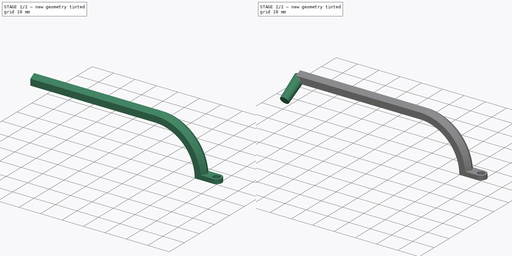
[diagram: build sequence overview — one tinted view per stage of 2, left to right]
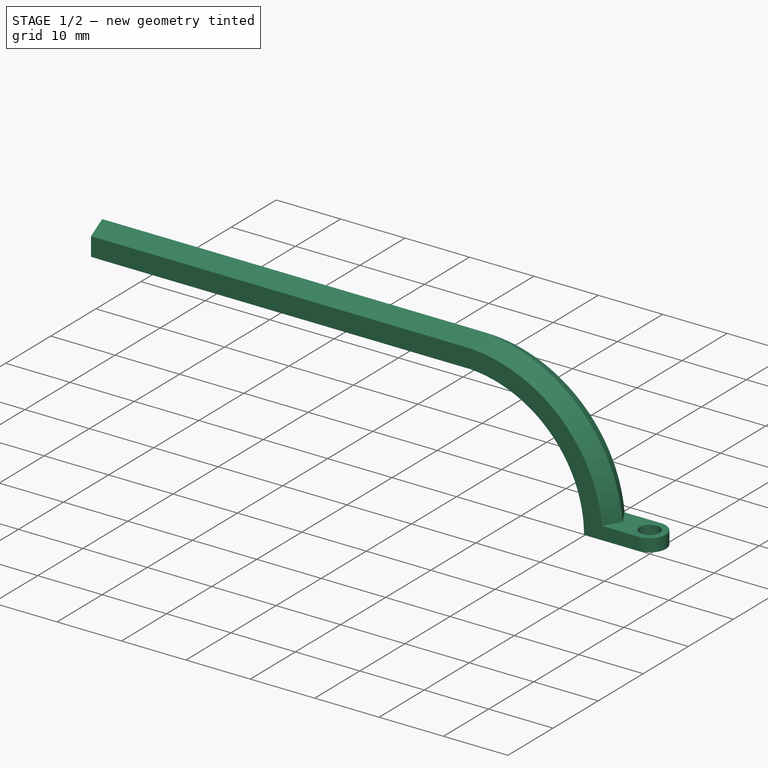
[diagram: stage 1 of 2 — iso view after this stage's code; geometry added in this stage tinted green]
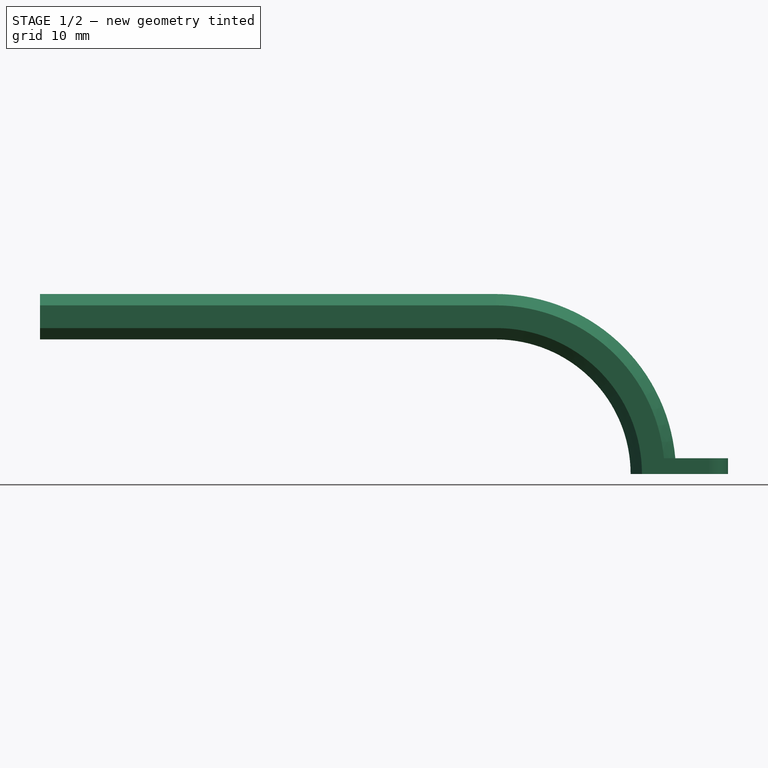
[diagram: stage 1 of 2 — front view after this stage's code; geometry added in this stage tinted green]
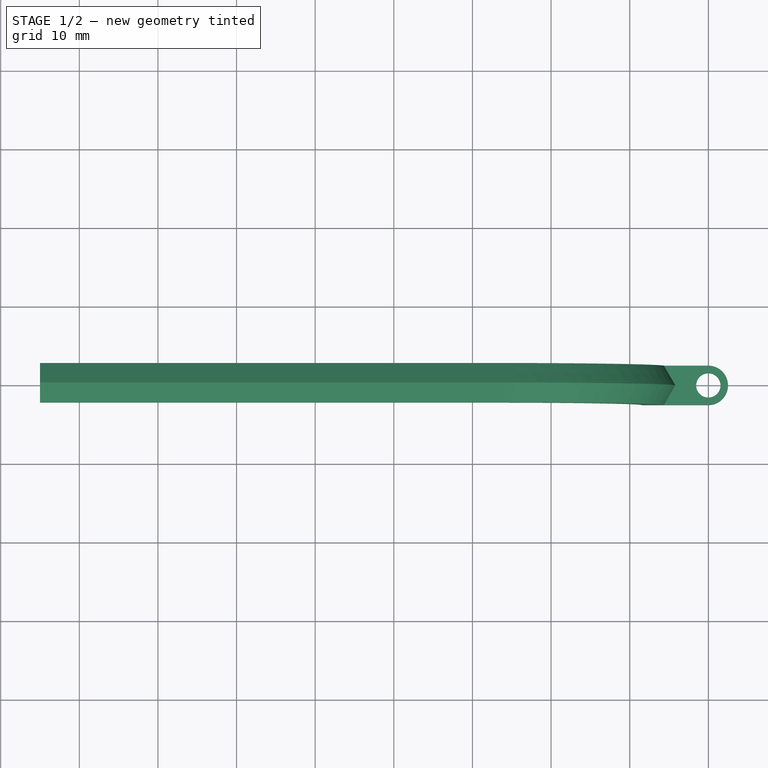
[diagram: stage 1 of 2 — top view after this stage's code; geometry added in this stage tinted green]
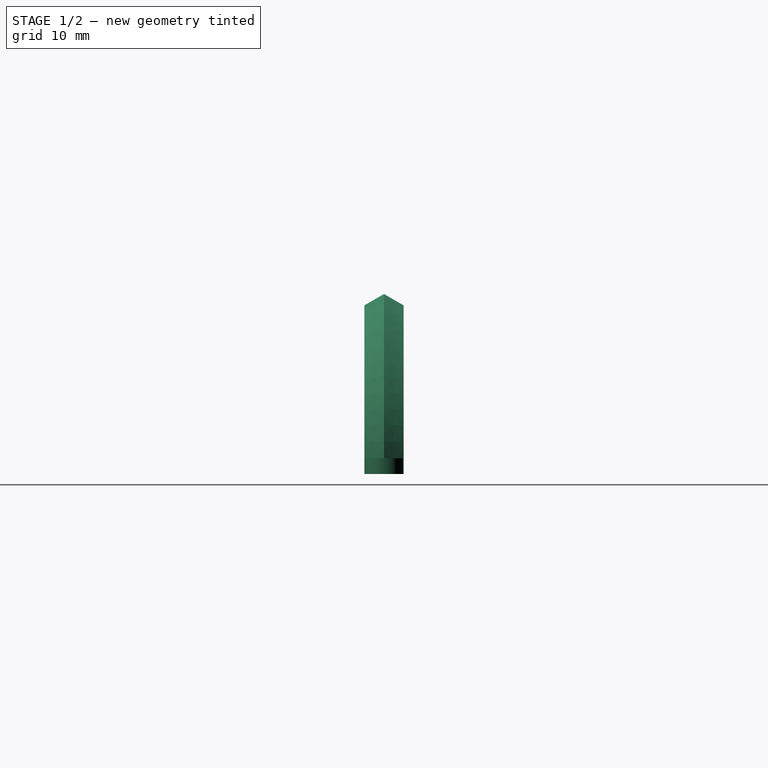
[diagram: stage 1 of 2 — right view after this stage's code; geometry added in this stage tinted green]
FCSTD DOCUMENT  (FreeCAD 0.19R24344 (Git))
Label: MicroManipulator_Arm_60
Comment: Arm for the MicroManipulator. The friction mount point for the Luer lock has the same angle as the holder of the peltier element. This angle is for installing the manipualtor on the left side of the p... (+15 chars)
License: Creative Commons Attribution-NonCommercial-ShareAlike
LicenseURL: http://creativecommons.org/licenses/by-nc-sa/4.0/
objects: Sketcher::SketchObject×4, PartDesign::CoordinateSystem×2, PartDesign::Pad×1, PartDesign::AdditivePipe×1, PartDesign::Line×1, PartDesign::Revolution×1, PartDesign::Body×1, App::Part×1
note: 14 computed .brp shape members not serialized (recipe doc carries the construction recipe); baked Part::Feature solids carry a one-line shape summary decoded from their .brp

FEATURE [Sketcher::SketchObject] Sketch
  FullyConstrained = true
  MapMode = 5
  Support = -> [XY_Plane]
  sketch-geometry (5):
    g0: Circle CenterX=0 CenterY=0 CenterZ=0 NormalX=0 NormalY=0 NormalZ=1 AngleXU=0 Radius=1.55
    g1: LineSegment StartX=1.23043e-11 StartY=2.5 StartZ=0 EndX=-7 EndY=2.5 EndZ=0
    g2: LineSegment StartX=-7 StartY=2.5 StartZ=0 EndX=-7 EndY=-2.5 EndZ=0
    g3: LineSegment StartX=1.23043e-11 StartY=-2.5 StartZ=0 EndX=-7 EndY=-2.5 EndZ=0
    g4: ArcOfCircle CenterX=0 CenterY=0 CenterZ=0 NormalX=0 NormalY=0 NormalZ=1 AngleXU=0 Radius=2.5 StartAngle=4.71239 EndAngle=7.85398
  constraints (14):
    c: Diameter(g0) = 3.1
    c: Horizontal(g1)
    c: Coincident(g2,g1)
    c: Vertical(g2)
    c: Coincident(g3,g2)
    c: Horizontal(g3)
    c: Coincident(g4,g1)
    c: Coincident(g4,g3)
    c: Angle(g4) = 3.14159
    c: Distance(g3,g1) = 5
    c: Vertical(g3,g1)
    c: Coincident(g4,g0)
    c: Coincident(g0,g-1)
    c: Distance(g3) = 7
FEATURE [PartDesign::Pad] Pad
  Direction = (1,1,1)
  Length = 2
  Length2 = 100
  Profile = -> Sketch
  Type = 0
FEATURE [Sketcher::SketchObject] Sketch001
  ExternalGeometry = -> [Pad]
  FullyConstrained = true
  MapMode = 5
  Placement = pos=(0,0,0) rot=(1,0,0;1.5708rad)
  Support = -> [XZ_Plane]
  sketch-geometry (2):
    g0: ArcOfCircle CenterX=-27 CenterY=-1.2e-15 CenterZ=0 NormalX=0 NormalY=0 NormalZ=1 AngleXU=0 Radius=20 StartAngle=0 EndAngle=1.5708
    g1: LineSegment StartX=-27 StartY=20 StartZ=0 EndX=-85 EndY=20 EndZ=0
  constraints (6):
    c: Coincident(g0,g-3)
    c: Horizontal(g1)
    c: DistanceX(g1,g-1) = 85
    c: DistanceY(g-1,g1) = 20
    c: Tangent(g1,g0) = -1.5708
    c: Angle(g0) = 1.5708
FEATURE [Sketcher::SketchObject] Sketch002
  ExternalGeometry = -> [Sketch001]
  FullyConstrained = true
  MapMode = 5
  Support = -> [XY_Plane]
  sketch-geometry (7):
    g0: LineSegment StartX=-8.44338 StartY=-2.5 StartZ=0 EndX=-5.55662 EndY=-2.5 EndZ=0
    g1: LineSegment StartX=-5.55662 StartY=-2.5 StartZ=0 EndX=-4.11325 EndY=4e-16 EndZ=0
    g2: LineSegment StartX=-4.11325 StartY=4e-16 StartZ=0 EndX=-5.55662 EndY=2.5 EndZ=0
    g3: LineSegment StartX=-5.55662 StartY=2.5 StartZ=0 EndX=-8.44338 EndY=2.5 EndZ=0
    g4: LineSegment StartX=-8.44338 StartY=2.5 StartZ=0 EndX=-9.88675 EndY=0 EndZ=0
    g5: LineSegment StartX=-9.88675 StartY=0 StartZ=0 EndX=-8.44338 EndY=-2.5 EndZ=0
    g6: Circle CenterX=-7 CenterY=0 CenterZ=0 NormalX=0 NormalY=0 NormalZ=1 AngleXU=0 Radius=2.88675
  constraints (16):
    c: Coincident(g0,g1)
    c: Coincident(g1,g2)
    c: Coincident(g2,g3)
    c: Coincident(g3,g4)
    c: Coincident(g4,g5)
    c: Coincident(g5,g0)
    c: Equal(g0, g1-g5) x5
    c: PointOnObject(g0,g6)
    c: PointOnObject(g1,g6)
    c: PointOnObject(g2,g6)
    c: PointOnObject(g3,g6)
    c: PointOnObject(g4,g6)
    c: PointOnObject(g5,g6)
    c: DistanceY(g0,g3) = 5
    c: Horizontal(g0)
    c: Coincident(g6,g-3)
FEATURE [PartDesign::AdditivePipe] AdditivePipe
  AuxilleryCurvelinear = true
  AuxillerySpineTangent = false
  BaseFeature = -> Pad
  Binormal = (0,0,0)
  Mode = 2
  Profile = -> Sketch002
  Spine = -> Sketch001
  SpineTangent = false
  Transformation = 0
  Transition = 0
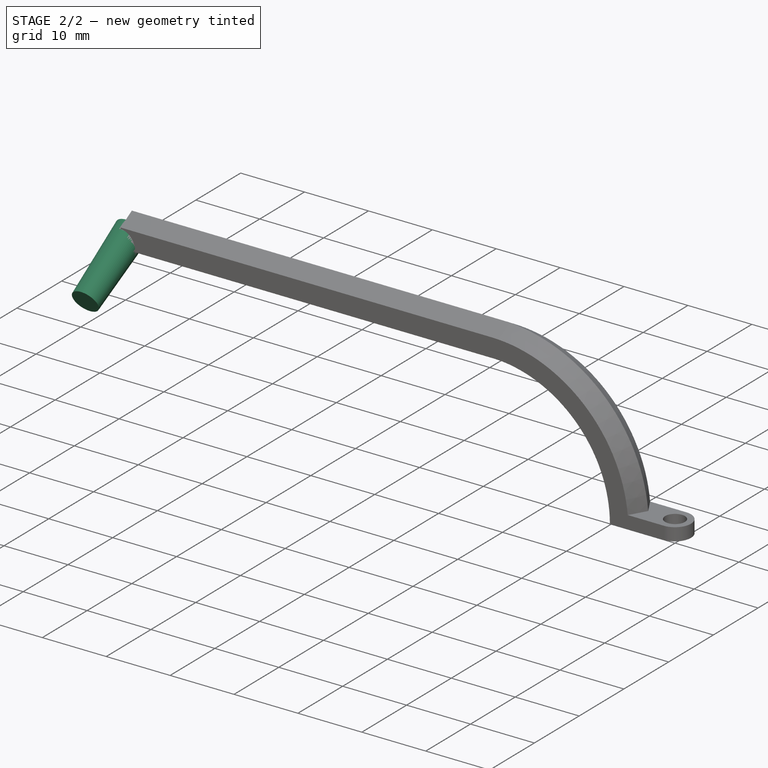
[diagram: stage 2 of 2 — iso view after this stage's code; geometry added in this stage tinted green]
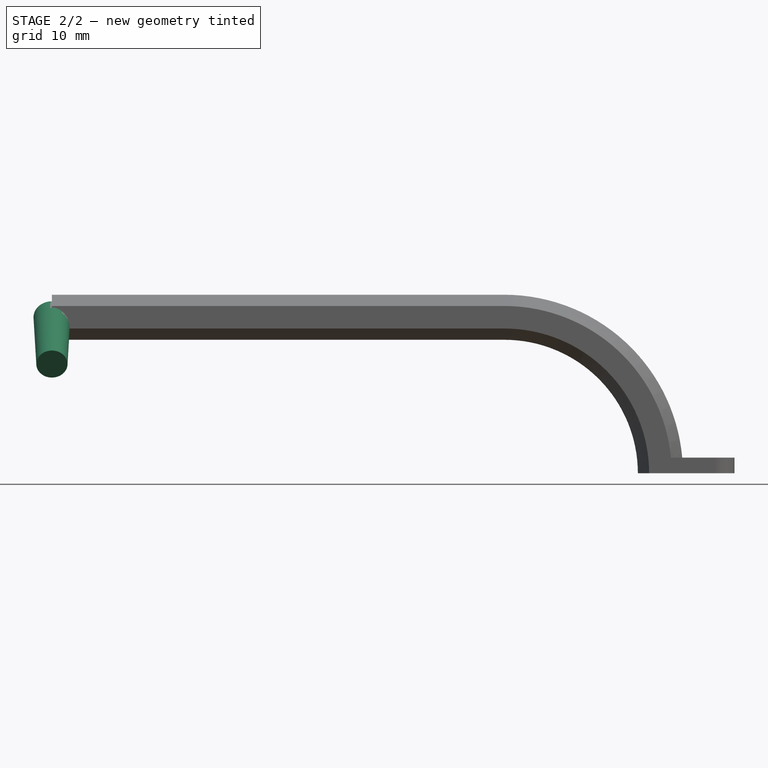
[diagram: stage 2 of 2 — front view after this stage's code; geometry added in this stage tinted green]
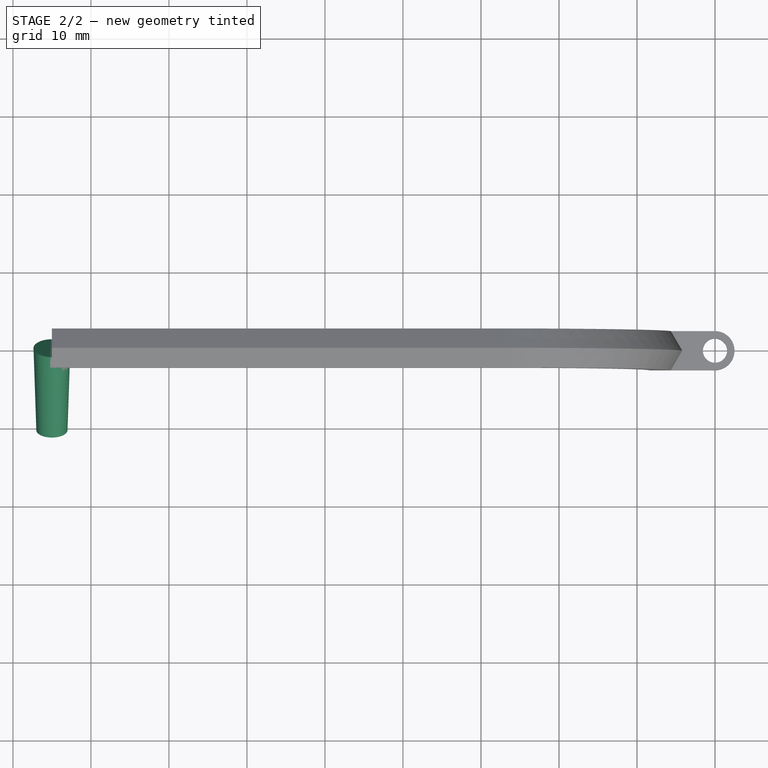
[diagram: stage 2 of 2 — top view after this stage's code; geometry added in this stage tinted green]
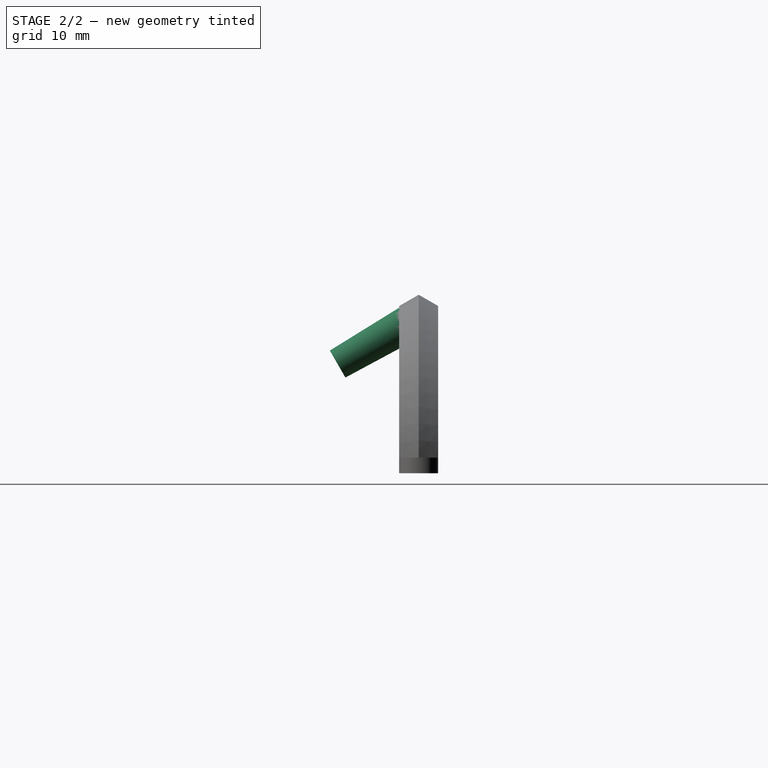
[diagram: stage 2 of 2 — right view after this stage's code; geometry added in this stage tinted green]
FEATURE [Sketcher::SketchObject] Sketch003
  ExternalGeometry = -> [Sketch001]
  FullyConstrained = true
  MapMode = 5
  Placement = pos=(-85,0,0) rot=(0.57735,-0.57735,-0.57735;2.0944rad)
  Support = -> [AdditivePipe]
  sketch-geometry (4):
    g0: LineSegment StartX=4.4e-15 StartY=20 StartZ=0 EndX=10.3923 EndY=14 EndZ=0
    g1: LineSegment StartX=4.4e-15 StartY=20 StartZ=0 EndX=1.18017 EndY=22.0441 EndZ=0
    g2: LineSegment StartX=1.18017 StartY=22.0441 StartZ=0 EndX=11.3923 EndY=15.7321 EndZ=0
    g3: LineSegment StartX=11.3923 StartY=15.7321 StartZ=0 EndX=10.3923 EndY=14 EndZ=0
  constraints (11):
    c: Coincident(g1,g0)
    c: Coincident(g2,g1)
    c: Coincident(g3,g2)
    c: Distance(g0) = 12
    c: Distance(g3) = 2
    c: Coincident(g0,g-3)
    c: Coincident(g3,g0)
    c: Angle(g-2,g0) = 1.0472
    c: Angle(g2,g0) = 0.0300197
    c: Perpendicular(g0,g3)
    c: Angle(g0,g1) = 1.5708
FEATURE [PartDesign::Line] DatumLine
  AttacherType = Attacher::AttachEngineLine
  Length = 20
  MapMode = 29
  Placement = pos=(-85,-8.66025,15) rot=(1,0,0;2.0944rad)
  ResizeMode = 0
  Support = -> [Sketch003]
FEATURE [PartDesign::Revolution] Revolution
  Angle = 360
  Axis = (0,-0.866025,-0.5)
  Base = (-85,-8.66025,15)
  BaseFeature = -> AdditivePipe
  Profile = -> Sketch003
  ReferenceAxis = -> DatumLine
  Reversed = true
FEATURE [PartDesign::Body] Body
  Group = -> [Sketch,Pad,Sketch001,Sketch002,AdditivePipe,Sketch003,Revolution,DatumLine]
  Origin = -> Origin
  Tip = -> Revolution
FEATURE [PartDesign::CoordinateSystem] LCS_0
  AttacherType = Attacher::AttachEngine3D
  MapMode = 2
  Support = -> [X_Axis001]
FEATURE [PartDesign::CoordinateSystem] ArmMount_LCS
  AttacherType = Attacher::AttachEngine3D
  AttachmentOffset = pos=(0,0,0) rot=(0,0,1;1.5708rad)
  MapMode = 45
  Placement = pos=(7.3e-15,0,0) rot=(0,0,1;1.5708rad)
  Support = -> [Revolution]
FEATURE [App::Part] TetherArm  label="Arm_TetherStation"
  Group = -> [LCS_0,Body,ArmMount_LCS]
  Origin = -> Origin001
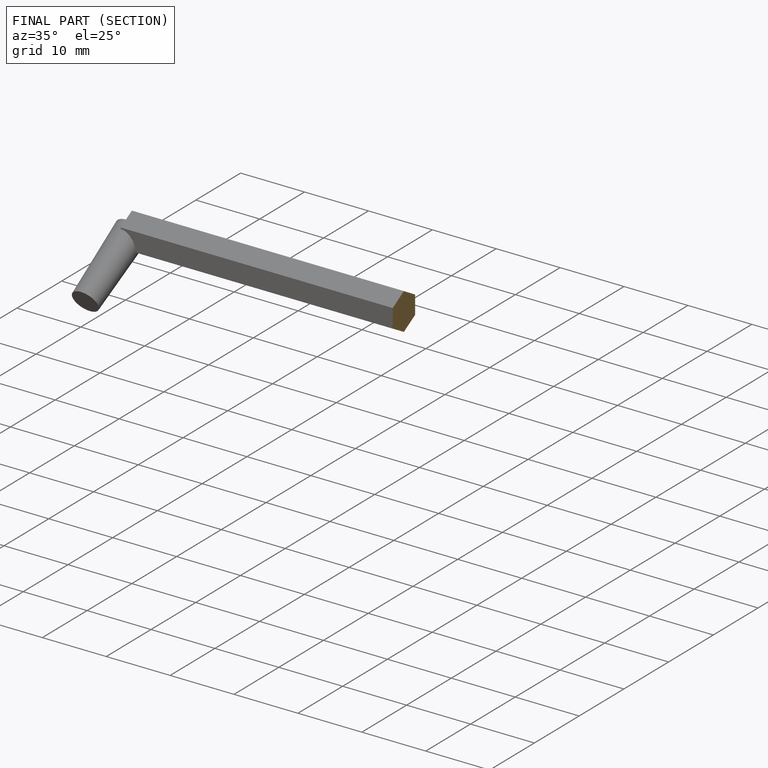
[diagram: finished part — half-section view (interior)]
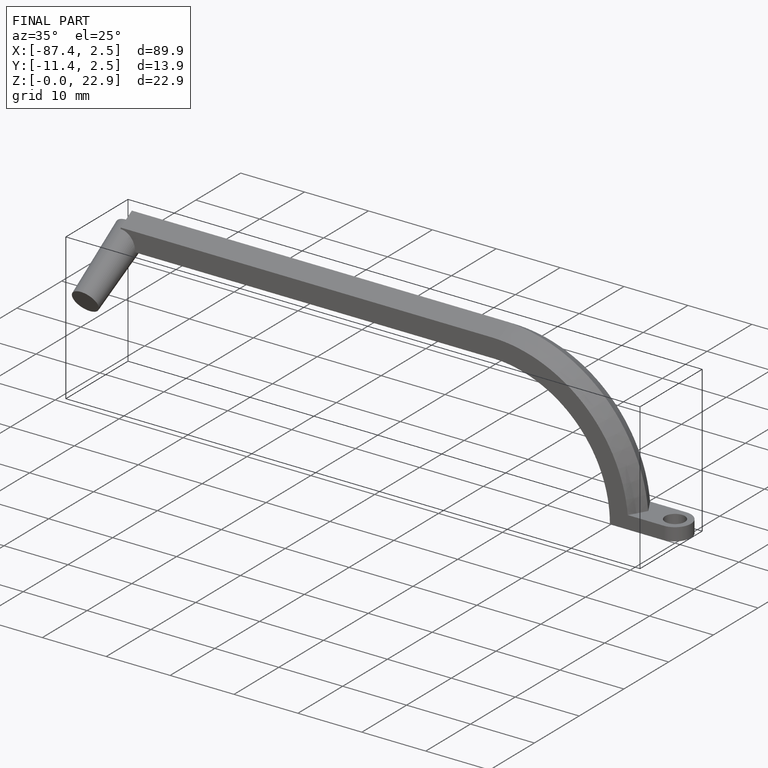
[diagram: finished part — iso view with bounding-box wireframe]
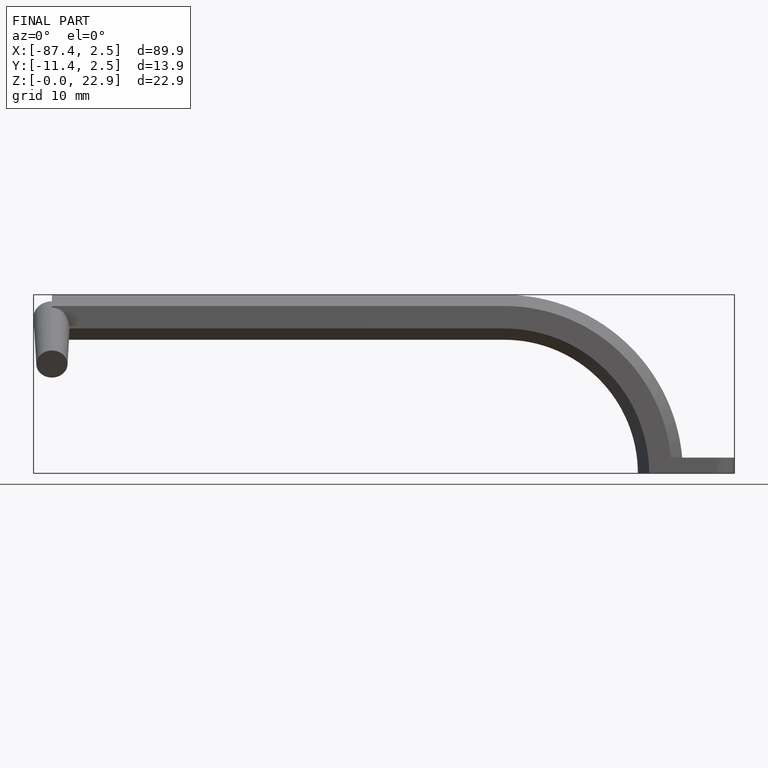
[diagram: finished part — front view with bounding-box wireframe]
